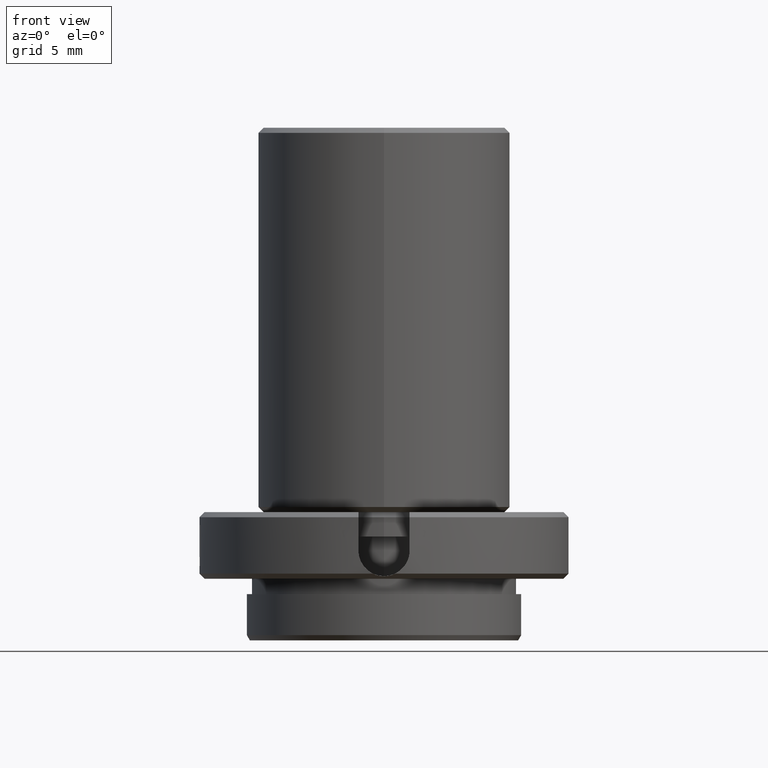
[diagram: clean part render]
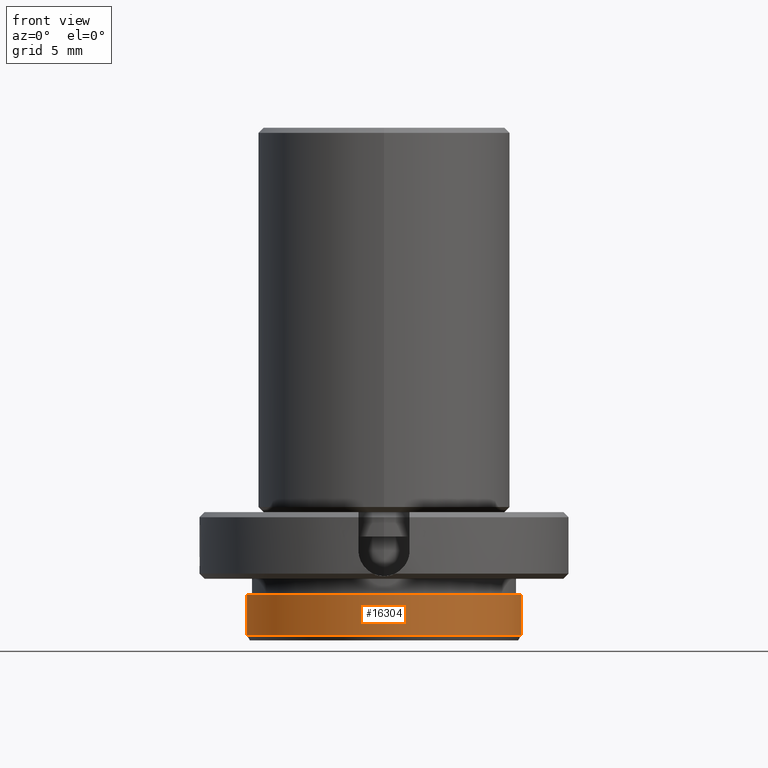
[diagram: same view with one face highlighted and labeled with its STEP entity id]
A machine part, front view. The second image highlights one B-rep face of the part: STEP entity #16304.
In plain terms, the highlighted cylindrical surface (partial cylindrical patch) has radius 6.7945 mm, axis along (0, 0, 1).
Its self-contained STEP definition (entity closure, byte-faithful):
#255 = DIRECTION ( 'NONE',  ( -1.000000000000000000, 1.110223024625156294E-16, 0.000000000000000000 ) ) ;
#382 = CARTESIAN_POINT ( 'NONE',  ( -5.711228751896165505E-34, 5.696588750603311398E-35, -0.5799999999999998490 ) ) ;
#1177 = EDGE_CURVE ( 'NONE', #18386, #24100, #34172, .T. ) ;
#2327 = AXIS2_PLACEMENT_3D ( 'NONE', #31851, #35163, #255 ) ;
#4493 = ORIENTED_EDGE ( 'NONE', *, *, #15805, .F. ) ;
#4806 = VECTOR ( 'NONE', #5057, 39.37007874015748143 ) ;
#5057 = DIRECTION ( 'NONE',  ( 3.938778449583563290E-33, 1.280132303506362441E-34, 1.000000000000000000 ) ) ;
#5099 = AXIS2_PLACEMENT_3D ( 'NONE', #382, #35299, #35169 ) ;
#5668 = VECTOR ( 'NONE', #6010, 39.37007874015748143 ) ;
#6010 = DIRECTION ( 'NONE',  ( 3.938778449583563290E-33, 1.280132303506362441E-34, 1.000000000000000000 ) ) ;
#7410 = DIRECTION ( 'NONE',  ( -1.000000000000000000, 1.110223024625156294E-16, 0.000000000000000000 ) ) ;
#11444 = CARTESIAN_POINT ( 'NONE',  ( -0.2675000000000000155, 2.969846590872293302E-17, -0.3399999999999999134 ) ) ;
#13825 = CIRCLE ( 'NONE', #5099, 0.2675000000000000155 ) ;
#15805 = EDGE_CURVE ( 'NONE', #19488, #24100, #18572, .T. ) ;
#16304 = ADVANCED_FACE ( 'NONE', ( #18025 ), #28440, .T. ) ;
#16926 = AXIS2_PLACEMENT_3D ( 'NONE', #27797, #33324, #7410 ) ;
#18025 = FACE_OUTER_BOUND ( 'NONE', #21870, .T. ) ;
#18386 = VERTEX_POINT ( 'NONE', #20638 ) ;
#18572 = CIRCLE ( 'NONE', #2327, 0.2675000000000000155 ) ;
#19488 = VERTEX_POINT ( 'NONE', #25522 ) ;
#19933 = CARTESIAN_POINT ( 'NONE',  ( 0.2675000000000000155, -6.245776778591462657E-17, -0.3399999999999999134 ) ) ;
#20538 = LINE ( 'NONE', #11444, #5668 ) ;
#20638 = CARTESIAN_POINT ( 'NONE',  ( 0.2675000000000000155, -6.245776778591462657E-17, -0.5799999999999998490 ) ) ;
#21870 = EDGE_LOOP ( 'NONE', ( #27189, #37118, #4493, #29254 ) ) ;
#23058 = EDGE_CURVE ( 'NONE', #36976, #19488, #20538, .T. ) ;
#24100 = VERTEX_POINT ( 'NONE', #33438 ) ;
#24708 = CARTESIAN_POINT ( 'NONE',  ( -0.2675000000000000155, 2.969846590872293302E-17, -0.5799999999999998490 ) ) ;
#25522 = CARTESIAN_POINT ( 'NONE',  ( -0.2675000000000000155, 2.969846590872293302E-17, -0.4999999999999998335 ) ) ;
#25944 = EDGE_CURVE ( 'NONE', #36976, #18386, #13825, .T. ) ;
#27189 = ORIENTED_EDGE ( 'NONE', *, *, #25944, .T. ) ;
#27797 = CARTESIAN_POINT ( 'NONE',  ( 3.741839527104384886E-34, 8.768906279018581428E-35, -0.3399999999999999134 ) ) ;
#28440 = CYLINDRICAL_SURFACE ( 'NONE', #16926, 0.2675000000000000155 ) ;
#29254 = ORIENTED_EDGE ( 'NONE', *, *, #23058, .F. ) ;
#31851 = CARTESIAN_POINT ( 'NONE',  ( -2.560205992229313949E-34, 6.720694593408402121E-35, -0.4999999999999998335 ) ) ;
#33324 = DIRECTION ( 'NONE',  ( 3.938778449583563290E-33, 1.280132303506362441E-34, 1.000000000000000000 ) ) ;
#33438 = CARTESIAN_POINT ( 'NONE',  ( 0.2675000000000000155, -6.245776778591462657E-17, -0.4999999999999998335 ) ) ;
#34172 = LINE ( 'NONE', #19933, #4806 ) ;
#35163 = DIRECTION ( 'NONE',  ( 3.938778449583563290E-33, 1.280132303506362441E-34, 1.000000000000000000 ) ) ;
#35169 = DIRECTION ( 'NONE',  ( -1.000000000000000000, 1.110223024625156294E-16, 0.000000000000000000 ) ) ;
#35299 = DIRECTION ( 'NONE',  ( 3.938778449583563290E-33, 1.280132303506362441E-34, 1.000000000000000000 ) ) ;
#36976 = VERTEX_POINT ( 'NONE', #24708 ) ;
#37118 = ORIENTED_EDGE ( 'NONE', *, *, #1177, .T. ) ;